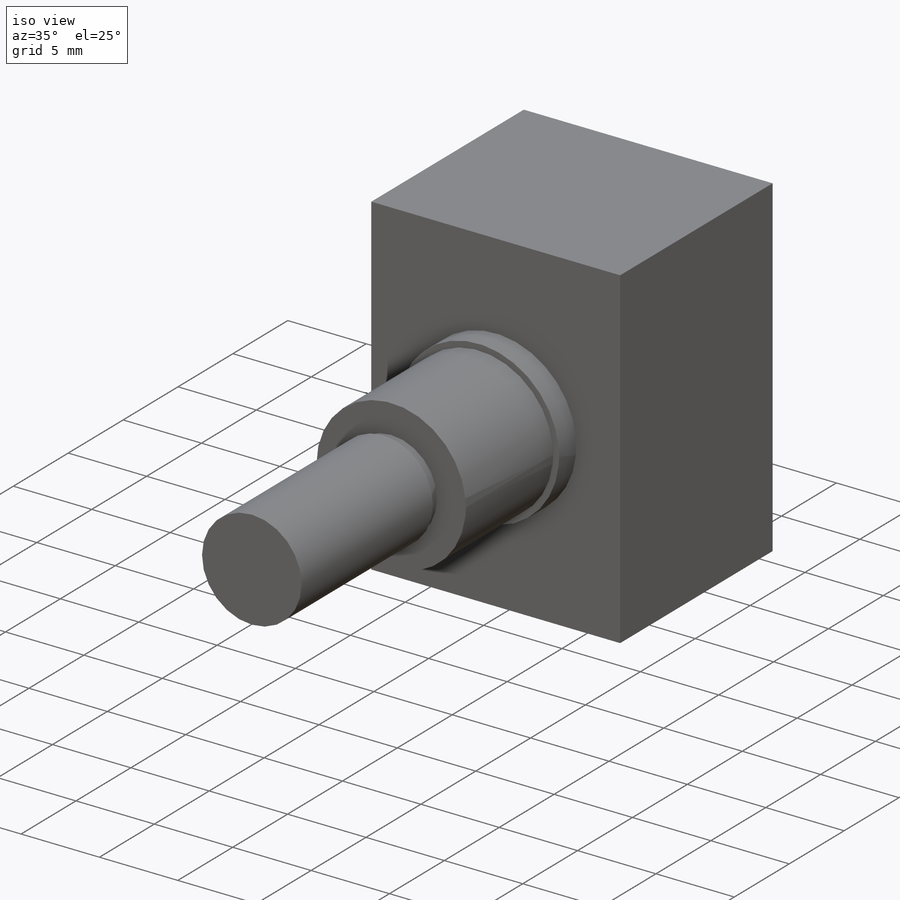
[diagram: iso view]
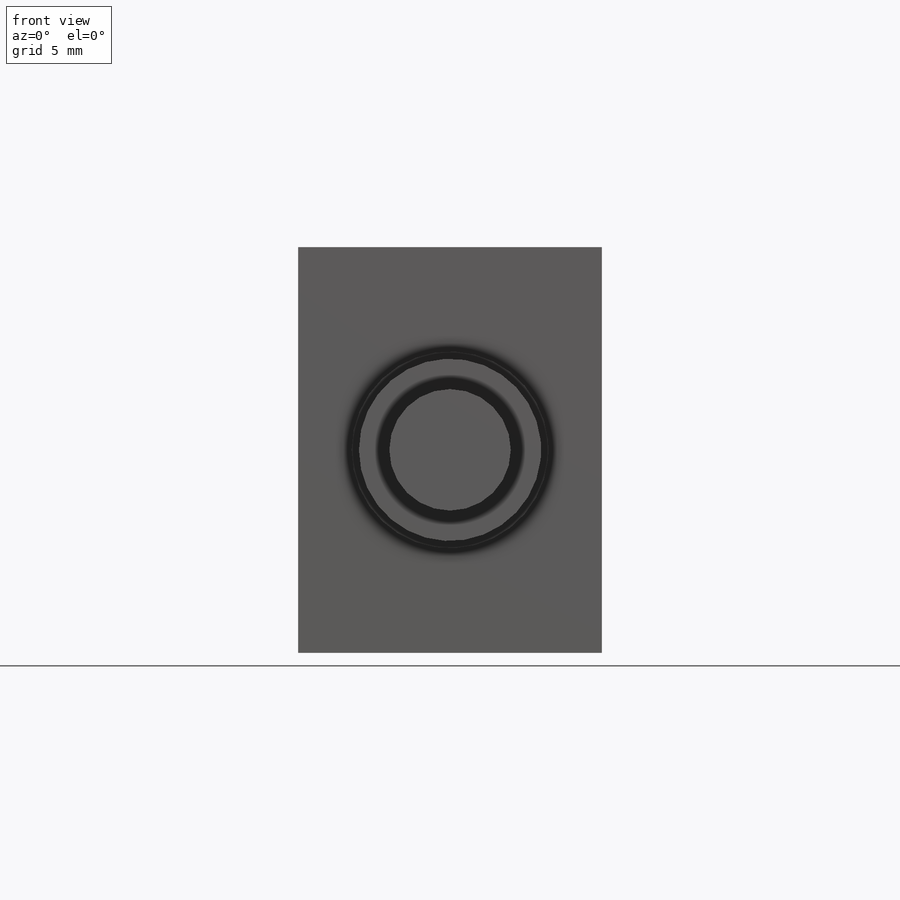
[diagram: front view]
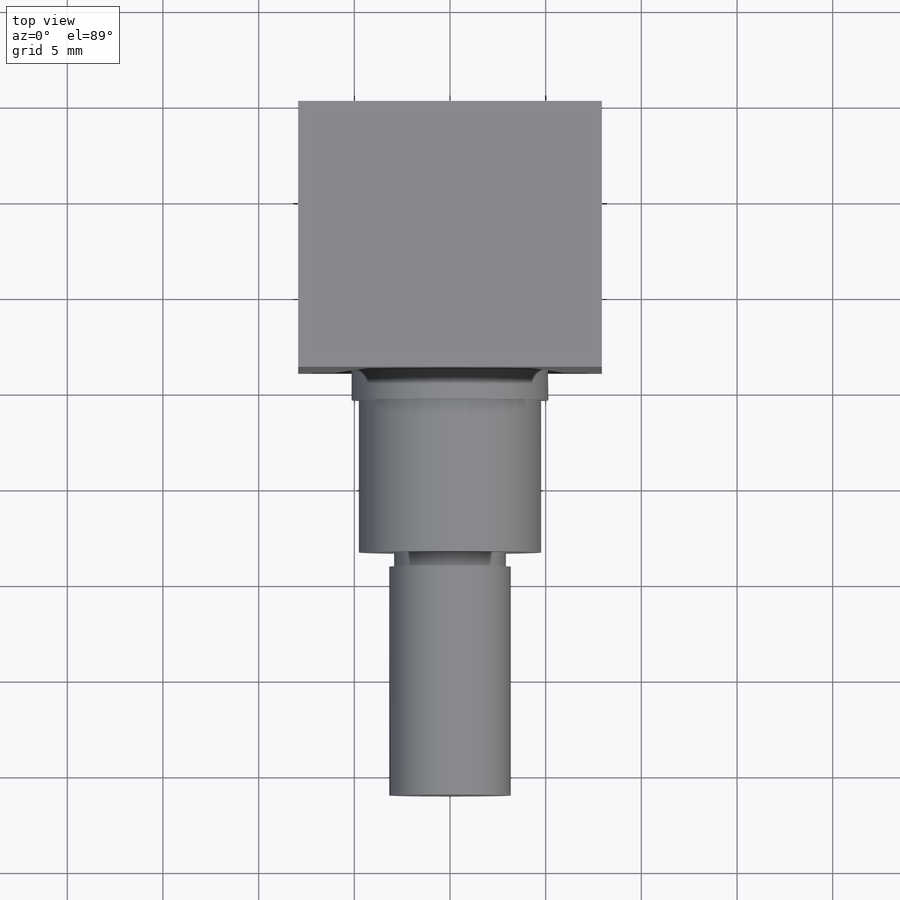
[diagram: top view]
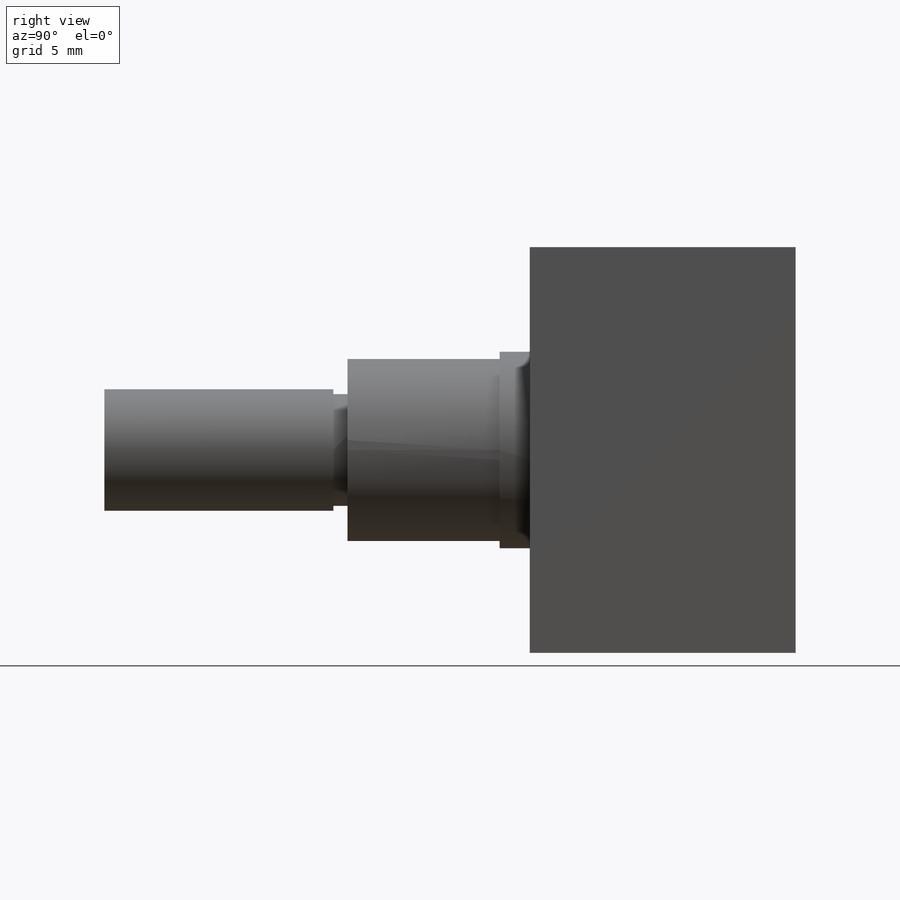
[diagram: right view]
SOLIDWORKS PART (.sldprt)
format: sldprt  version: not decoded by parser v0  size: 206,336 bytes
history: native  units: mm
features: sketch x5, extrude x4, material x1, cut_revolve x1 (+13 scaffold rows collapsed)
feature tree (24):
  scaffold x13  (default folders/planes/origin — collapsed)
  material  "6061-T6 (SS)"
  sketch  "Sketch1"  dims[D1=21.209mm D2=15.875mm]
  extrude  "Boss-Extrude1"  Depth=13.8938mm
  sketch  "Sketch2"  dims[D1=10.287mm]
  extrude  "Boss-Extrude2"  Depth=1.5748mm
  sketch  "Sketch3"  dims[D1=9.525mm]
  extrude  "Boss-Extrude3"  Depth=9.525mm
  sketch  "Sketch4"  dims[D1=6.35mm]
  extrude  "Boss-Extrude4"  Depth=22.225mm
  sketch  "Sketch5"  dims[D1=2.921mm D2=0.7366mm]
  cut_revolve  "Cut-Revolve1"  Angle=360deg
decode coverage: 10 of 10 modeling features carry decoded parameters
note: suppression state not decoded; provenance and decode notes live in map.json
